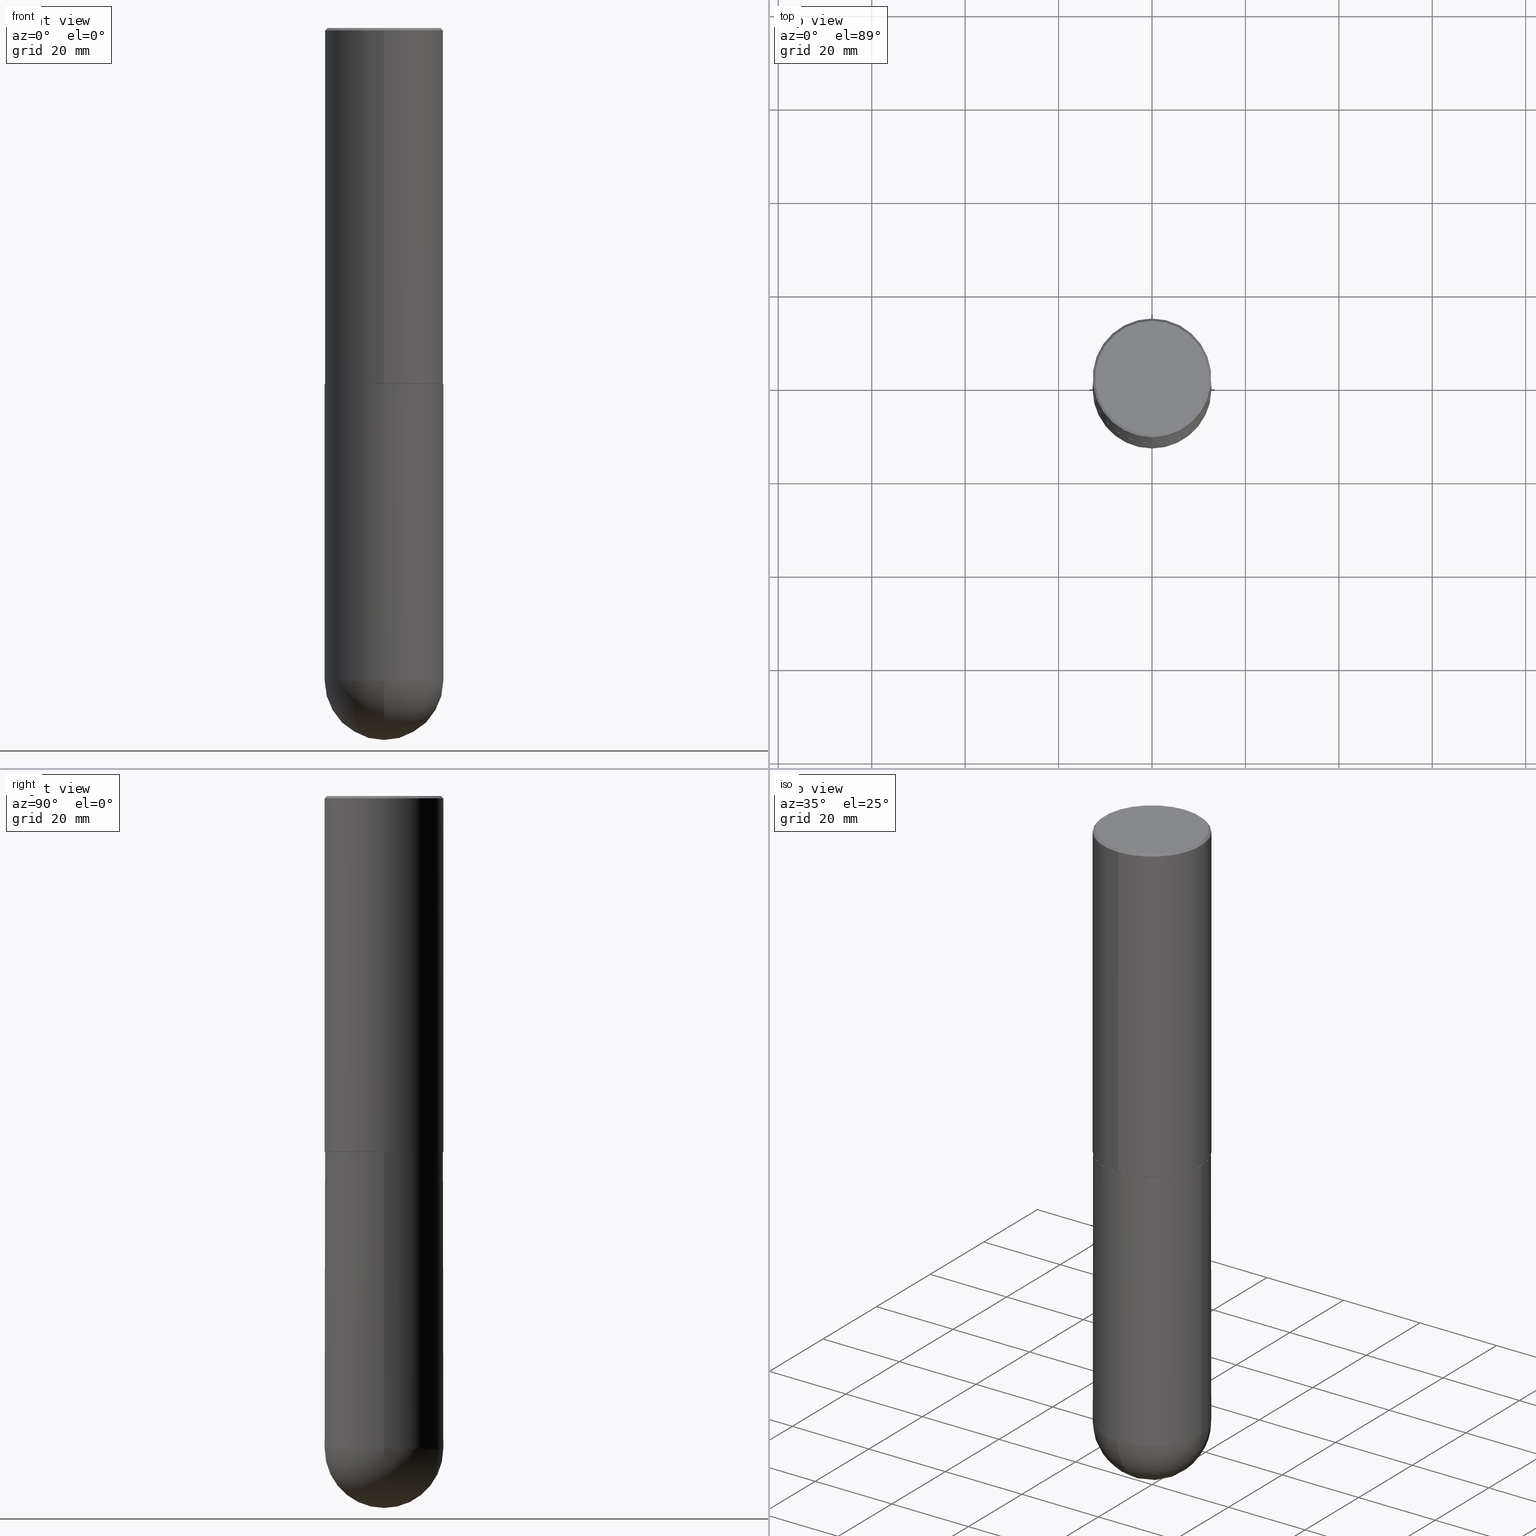
[diagram: canonical four-view strip — front | top / right | iso, engineering-drawing reading convention]
A machine part, canonical four-view strip (front | top / right | iso — engineering-drawing reading convention). The complete STEP part file that produces these views, byte-faithful:
ISO-10303-21;
HEADER;
FILE_DESCRIPTION (( 'STEP AP203' ),
    '1' );
FILE_NAME ('33138.STEP',
    '2024-02-21T17:56:24',
    ( '' ),
    ( '' ),
    'SwSTEP 2.0',
    'SolidWorks 2023',
    '' );
FILE_SCHEMA (( 'CONFIG_CONTROL_DESIGN' ));
ENDSEC;

DATA;
#1 = ORIENTED_EDGE ( 'NONE', *, *, #357, .F. ) ;
#2 = APPROVAL_PERSON_ORGANIZATION ( #5, #290, #143 ) ;
#3 = COORDINATED_UNIVERSAL_TIME_OFFSET ( 5, 0, .BEHIND. ) ;
#4 = DIRECTION ( 'NONE',  ( -1.000000000000000000, 6.982962677686265922E-15, -4.883557194083112901E-29 ) ) ;
#5 = PERSON_AND_ORGANIZATION ( #13, #79 ) ;
#6 =( LENGTH_UNIT ( ) NAMED_UNIT ( * ) SI_UNIT ( $, .METRE. ) );
#7 = CARTESIAN_POINT ( 'NONE',  ( 7.332693263445419070E-29, -1.047276793412986863E-14, -2.999000000000000554 ) ) ;
#8 = EDGE_CURVE ( 'NONE', #223, #323, #102, .T. ) ;
#9 = COORDINATED_UNIVERSAL_TIME_OFFSET ( 5, 0, .BEHIND. ) ;
#10 = CARTESIAN_POINT ( 'NONE',  ( 3.351822085289415042E-15, 0.4800000000000010369, -2.216023152984338399E-15 ) ) ;
#11 = CC_DESIGN_PERSON_AND_ORGANIZATION_ASSIGNMENT ( #344, #258, ( #94 ) ) ;
#12 = DIRECTION ( 'NONE',  ( 2.438088387897960049E-29, -3.491481338843145188E-15, -1.000000000000000000 ) ) ;
#13 = PERSON ( 'UNSPECIFIED', 'UNSPECIFIED', 'UNSPECIFIED', ('UNSPECIFIED'), ('UNSPECIFIED'), ('UNSPECIFIED') ) ;
#14 = DIRECTION ( 'NONE',  ( 2.445046103182866975E-29, -3.492086673601156067E-15, -1.000000000000000000 ) ) ;
#15 =( CONVERSION_BASED_UNIT ( 'INCH', #390 ) LENGTH_UNIT ( ) NAMED_UNIT ( #300 ) );
#16 = EDGE_CURVE ( 'NONE', #52, #340, #304, .T. ) ;
#17 = DIRECTION ( 'NONE',  ( 1.000000000000000000, -6.982962677686266711E-15, 0.000000000000000000 ) ) ;
#18 = AXIS2_PLACEMENT_3D ( 'NONE', #7, #294, #231 ) ;
#19 = DIRECTION ( 'NONE',  ( 6.982962677686265922E-15, 1.000000000000000000, -4.370956789862816416E-15 ) ) ;
#20 = ORIENTED_EDGE ( 'NONE', *, *, #245, .F. ) ;
#21 = CARTESIAN_POINT ( 'NONE',  ( 7.336406418555409790E-29, -1.047444401652943635E-14, -3.000000000000000444 ) ) ;
#22 = PERSON_AND_ORGANIZATION ( #13, #79 ) ;
#23 = CIRCLE ( 'NONE', #356, 0.5000000000000000000 ) ;
#24 = ORIENTED_EDGE ( 'NONE', *, *, #170, .F. ) ;
#25 = AXIS2_PLACEMENT_3D ( 'NONE', #100, #98, #33 ) ;
#26 = ORIENTED_EDGE ( 'NONE', *, *, #357, .T. ) ;
#27 = PRODUCT_DEFINITION ( 'UNKNOWN', '', #94, #158 ) ;
#28 = DIRECTION ( 'NONE',  ( -6.982962677686265922E-15, -1.000000000000000000, 3.491643216902136408E-15 ) ) ;
#29 = ORIENTED_EDGE ( 'NONE', *, *, #188, .T. ) ;
#30 = AXIS2_PLACEMENT_3D ( 'NONE', #303, #325, #47 ) ;
#31 = AXIS2_PLACEMENT_3D ( 'NONE', #69, #402, #106 ) ;
#32 = LINE ( 'NONE', #165, #176 ) ;
#33 = DIRECTION ( 'NONE',  ( -6.982962677686265922E-15, -1.000000000000000000, 3.492086673601156067E-15 ) ) ;
#34 = VERTEX_POINT ( 'NONE', #239 ) ;
#35 = ADVANCED_FACE ( 'NONE', ( #362 ), #88, .T. ) ;
#36 = CARTESIAN_POINT ( 'NONE',  ( 3.491481338843267462E-15, 0.4999999999999808487, -5.500000000000002665 ) ) ;
#37 = ORIENTED_EDGE ( 'NONE', *, *, #386, .T. ) ;
#38 = CARTESIAN_POINT ( 'NONE',  ( -3.430248998885764992E-15, -0.5000000000000001110, -0.01999999999999835937 ) ) ;
#39 = AXIS2_PLACEMENT_3D ( 'NONE', #280, #410, #383 ) ;
#40 = AXIS2_PLACEMENT_3D ( 'NONE', #83, #361, #329 ) ;
#41 = MANIFOLD_SOLID_BREP ( 'Body-Move/Copy2[1]', #93 ) ;
#42 = EDGE_CURVE ( 'NONE', #62, #159, #321, .T. ) ;
#43 = PLANE ( 'NONE',  #377 ) ;
#44 = PRODUCT_DEFINITION_SHAPE ( 'NONE', 'NONE',  #27 ) ;
#45 = SPHERICAL_SURFACE ( 'NONE', #332, 0.5000000000000005551 ) ;
#46 = ORIENTED_EDGE ( 'NONE', *, *, #138, .F. ) ;
#47 = DIRECTION ( 'NONE',  ( -6.982962677686265922E-15, -1.000000000000000000, 3.492086673601155672E-15 ) ) ;
#48 = CARTESIAN_POINT ( 'NONE',  ( -0.5000000000000000000, -1.128608201128287263E-14, -5.500000000000000888 ) ) ;
#49 = VECTOR ( 'NONE', #89, 39.37007874015748854 ) ;
#50 = DIRECTION ( 'NONE',  ( -2.445468806185136597E-29, 3.491481338843145583E-15, 1.000000000000000000 ) ) ;
#51 = EDGE_CURVE ( 'NONE', #65, #159, #201, .T. ) ;
#52 = VERTEX_POINT ( 'NONE', #103 ) ;
#53 = DIRECTION ( 'NONE',  ( 6.982962677686265922E-15, 1.000000000000000000, -3.491643216902136408E-15 ) ) ;
#54 = VERTEX_POINT ( 'NONE', #317 ) ;
#55 = AXIS2_PLACEMENT_3D ( 'NONE', #178, #342, #251 ) ;
#56 =( GEOMETRIC_REPRESENTATION_CONTEXT ( 3 ) GLOBAL_UNCERTAINTY_ASSIGNED_CONTEXT ( ( #215 ) ) GLOBAL_UNIT_ASSIGNED_CONTEXT ( ( #15, #395, #117 ) ) REPRESENTATION_CONTEXT ( 'NONE', 'WORKASPACE' ) );
#57 = PERSON_AND_ORGANIZATION ( #13, #79 ) ;
#58 = ADVANCED_FACE ( 'NONE', ( #224 ), #347, .T. ) ;
#59 = ORIENTED_EDGE ( 'NONE', *, *, #97, .T. ) ;
#60 = DIRECTION ( 'NONE',  ( -6.982962677686265922E-15, -1.000000000000000000, 3.284787166730577015E-15 ) ) ;
#61 = DIRECTION ( 'NONE',  ( -6.982962677686265922E-15, -1.000000000000000000, 3.492086673601155672E-15 ) ) ;
#62 = VERTEX_POINT ( 'NONE', #48 ) ;
#63 = EDGE_LOOP ( 'NONE', ( #202, #155, #408, #243 ) ) ;
#64 = LINE ( 'NONE', #191, #343 ) ;
#65 = VERTEX_POINT ( 'NONE', #296 ) ;
#66 = ORIENTED_EDGE ( 'NONE', *, *, #278, .F. ) ;
#67 = AXIS2_PLACEMENT_3D ( 'NONE', #371, #72, #61 ) ;
#68 = PERSON_AND_ORGANIZATION ( #13, #79 ) ;
#69 = CARTESIAN_POINT ( 'NONE',  ( 2.639777152800000414E-44, -3.770207279351343955E-30, -1.079643099311558880E-15 ) ) ;
#70 = CARTESIAN_POINT ( 'NONE',  ( 0.000000000000000000, 0.000000000000000000, 0.000000000000000000 ) ) ;
#71 = DATE_AND_TIME ( #105, #328 ) ;
#72 = DIRECTION ( 'NONE',  ( -2.445046103182867255E-29, 3.492086673601156067E-15, 1.000000000000000000 ) ) ;
#73 = CARTESIAN_POINT ( 'NONE',  ( 3.491481338843133355E-15, 0.4999999999999999445, -0.02000000000000185310 ) ) ;
#74 = AXIS2_PLACEMENT_3D ( 'NONE', #179, #50, #326 ) ;
#75 = APPROVAL_DATE_TIME ( #351, #141 ) ;
#76 = ADVANCED_FACE ( 'NONE', ( #114 ), #43, .F. ) ;
#77 = ORIENTED_EDGE ( 'NONE', *, *, #189, .F. ) ;
#78 = CARTESIAN_POINT ( 'NONE',  ( 0.5000000000000000000, -1.396592535537257129E-14, -3.000000000000000444 ) ) ;
#79 = ORGANIZATION ( 'UNSPECIFIED', 'UNSPECIFIED', '' ) ;
#80 = CIRCLE ( 'NONE', #31, 0.4800000000000010369 ) ;
#81 = FACE_OUTER_BOUND ( 'NONE', #396, .T. ) ;
#82 = ADVANCED_FACE ( 'NONE', ( #81 ), #190, .T. ) ;
#83 = CARTESIAN_POINT ( 'NONE',  ( 0.000000000000000000, 0.000000000000000000, 0.000000000000000000 ) ) ;
#84 = CIRCLE ( 'NONE', #392, 0.4989999999999999991 ) ;
#85 = ADVANCED_FACE ( 'NONE', ( #238 ), #229, .T. ) ;
#86 = CONICAL_SURFACE ( 'NONE', #183, 0.5000000000000000000, 0.7853981633974468357 ) ;
#87 = VERTEX_POINT ( 'NONE', #211 ) ;
#88 = CYLINDRICAL_SURFACE ( 'NONE', #30, 0.5000000000000002220 ) ;
#89 = DIRECTION ( 'NONE',  ( -4.937700262164715281E-15, -0.7071067811865691111, 0.7071067811865257013 ) ) ;
#90 = CARTESIAN_POINT ( 'NONE',  ( 7.335138309548603447E-29, -1.047626002080347175E-14, -3.000000000000000888 ) ) ;
#91 = LINE ( 'NONE', #187, #49 ) ;
#92 = COORDINATED_UNIVERSAL_TIME_OFFSET ( 5, 0, .BEHIND. ) ;
#93 = CLOSED_SHELL ( 'NONE', ( #58, #116, #331, #210, #107 ) ) ;
#94 = PRODUCT_DEFINITION_FORMATION_WITH_SPECIFIED_SOURCE ( 'ANY', '', #111, .NOT_KNOWN. ) ;
#95 = EDGE_LOOP ( 'NONE', ( #411, #241 ) ) ;
#96 = FACE_OUTER_BOUND ( 'NONE', #220, .T. ) ;
#97 = EDGE_CURVE ( 'NONE', #52, #199, #91, .T. ) ;
#98 = DIRECTION ( 'NONE',  ( -2.445046103182866975E-29, 3.492086673601156067E-15, 1.000000000000000000 ) ) ;
#99 = CARTESIAN_POINT ( 'NONE',  ( 3.545608251442972496E-15, 0.4989999999999895630, -3.000000000000002220 ) ) ;
#100 = CARTESIAN_POINT ( 'NONE',  ( 7.335138309548602326E-29, -1.047626002080347017E-14, -3.000000000000000444 ) ) ;
#101 = ORIENTED_EDGE ( 'NONE', *, *, #170, .T. ) ;
#102 = CIRCLE ( 'NONE', #153, 0.5000000000000000000 ) ;
#103 = CARTESIAN_POINT ( 'NONE',  ( -3.484498376165373188E-15, -0.4990000000000104352, -2.999999999999999112 ) ) ;
#104 = CIRCLE ( 'NONE', #378, 0.5000000000000000000 ) ;
#105 = CALENDAR_DATE ( 2024, 21, 2 ) ;
#106 = DIRECTION ( 'NONE',  ( -6.982962677686265922E-15, -1.000000000000000000, 3.492086673601155672E-15 ) ) ;
#107 = ADVANCED_FACE ( 'NONE', ( #212 ), #400, .T. ) ;
#108 = CARTESIAN_POINT ( 'NONE',  ( 0.000000000000000000, 0.000000000000000000, 0.000000000000000000 ) ) ;
#109 = ORIENTED_EDGE ( 'NONE', *, *, #260, .T. ) ;
#110 = CC_DESIGN_PERSON_AND_ORGANIZATION_ASSIGNMENT ( #22, #345, ( #111 ) ) ;
#111 = PRODUCT ( '33138', '33138', '', ( #271 ) ) ;
#112 = FACE_OUTER_BOUND ( 'NONE', #208, .T. ) ;
#113 = ADVANCED_BREP_SHAPE_REPRESENTATION ( '33138', ( #41, #182, #40 ), #56 ) ;
#114 = FACE_OUTER_BOUND ( 'NONE', #276, .T. ) ;
#115 = DIRECTION ( 'NONE',  ( 1.000000000000000000, -6.982962677686266711E-15, 4.876176775795935793E-29 ) ) ;
#116 = ADVANCED_FACE ( 'NONE', ( #112 ), #45, .T. ) ;
#117 =( NAMED_UNIT ( * ) SI_UNIT ( $, .STERADIAN. ) SOLID_ANGLE_UNIT ( ) );
#118 = ORIENTED_EDGE ( 'NONE', *, *, #235, .F. ) ;
#119 = CC_DESIGN_DATE_AND_TIME_ASSIGNMENT ( #125, #214, ( #27 ) ) ;
#120 = CARTESIAN_POINT ( 'NONE',  ( 4.890092206365760820E-31, -6.984173347202349949E-17, -0.02000000000000010797 ) ) ;
#121 = AXIS2_PLACEMENT_3D ( 'NONE', #128, #249, #272 ) ;
#122 = LOCAL_TIME ( 12, 56, 24.00000000000000000, #3 ) ;
#123 = EDGE_CURVE ( 'NONE', #62, #323, #285, .T. ) ;
#124 = APPROVAL ( #339, 'UNSPECIFIED' ) ;
#125 = DATE_AND_TIME ( #154, #404 ) ;
#126 = DIRECTION ( 'NONE',  ( -2.445468806185136597E-29, 3.491481338843145583E-15, 1.000000000000000000 ) ) ;
#127 = ORIENTED_EDGE ( 'NONE', *, *, #375, .T. ) ;
#128 = CARTESIAN_POINT ( 'NONE',  ( 4.890092206365760820E-31, -6.984173347202349949E-17, -0.02000000000000010797 ) ) ;
#129 = ORIENTED_EDGE ( 'NONE', *, *, #355, .F. ) ;
#130 = ORIENTED_EDGE ( 'NONE', *, *, #16, .F. ) ;
#131 = FACE_OUTER_BOUND ( 'NONE', #302, .T. ) ;
#132 = CARTESIAN_POINT ( 'NONE',  ( 7.336406418555409790E-29, -1.047444401652943635E-14, -3.000000000000000444 ) ) ;
#133 = AXIS2_PLACEMENT_3D ( 'NONE', #146, #156, #387 ) ;
#134 = ORIENTED_EDGE ( 'NONE', *, *, #401, .F. ) ;
#135 = AXIS2_PLACEMENT_3D ( 'NONE', #225, #308, #28 ) ;
#136 = DIRECTION ( 'NONE',  ( 6.982962677686265922E-15, 1.000000000000000000, -4.370956789862816416E-15 ) ) ;
#137 = VERTEX_POINT ( 'NONE', #305 ) ;
#138 = EDGE_CURVE ( 'NONE', #159, #54, #23, .T. ) ;
#139 = LOCAL_TIME ( 12, 56, 24.00000000000000000, #363 ) ;
#140 = DIRECTION ( 'NONE',  ( 1.000000000000000000, -6.982962677686266711E-15, 4.876176775795935793E-29 ) ) ;
#141 = APPROVAL ( #157, 'UNSPECIFIED' ) ;
#142 = FACE_OUTER_BOUND ( 'NONE', #95, .T. ) ;
#143 = APPROVAL_ROLE ( '' ) ;
#144 = DIRECTION ( 'NONE',  ( 6.982962677686265922E-15, 1.000000000000000000, -3.492086673601156067E-15 ) ) ;
#145 = APPROVAL_STATUS ( 'not_yet_approved' ) ;
#146 = CARTESIAN_POINT ( 'NONE',  ( 1.311895865610436840E-28, -1.967732973177735475E-14, -5.500000000000000888 ) ) ;
#147 = CIRCLE ( 'NONE', #133, 0.5000000000000005551 ) ;
#148 = SECURITY_CLASSIFICATION ( '', '', #195 ) ;
#149 = DIRECTION ( 'NONE',  ( 2.445046103182867255E-29, -3.492086673601156067E-15, -1.000000000000000000 ) ) ;
#150 = EDGE_CURVE ( 'NONE', #340, #52, #84, .T. ) ;
#151 = CARTESIAN_POINT ( 'NONE',  ( 7.335138309548603447E-29, -1.047626002080347175E-14, -3.000000000000000888 ) ) ;
#152 = EDGE_CURVE ( 'NONE', #54, #314, #327, .T. ) ;
#153 = AXIS2_PLACEMENT_3D ( 'NONE', #21, #297, #17 ) ;
#154 = CALENDAR_DATE ( 2024, 21, 2 ) ;
#155 = ORIENTED_EDGE ( 'NONE', *, *, #355, .T. ) ;
#156 = DIRECTION ( 'NONE',  ( 1.000000000000000000, -6.982962677686265922E-15, 4.883557194083112340E-29 ) ) ;
#157 = APPROVAL_STATUS ( 'not_yet_approved' ) ;
#158 = DESIGN_CONTEXT ( 'detailed design', #412, 'design' ) ;
#159 = VERTEX_POINT ( 'NONE', #277 ) ;
#160 = ADVANCED_FACE ( 'NONE', ( #407 ), #372, .F. ) ;
#161 = DIRECTION ( 'NONE',  ( -2.445468806185136597E-29, 3.491481338843145583E-15, 1.000000000000000000 ) ) ;
#162 = DIRECTION ( 'NONE',  ( 1.000000000000000000, -6.982962677686270655E-15, 0.000000000000000000 ) ) ;
#163 = ADVANCED_FACE ( 'NONE', ( #166 ), #205, .T. ) ;
#164 = PRODUCT_RELATED_PRODUCT_CATEGORY ( 'detail', '', ( #111 ) ) ;
#165 = CARTESIAN_POINT ( 'NONE',  ( 3.552713678800501718E-15, 0.5000000000000002220, -1.746043336800578625E-15 ) ) ;
#166 = FACE_OUTER_BOUND ( 'NONE', #173, .T. ) ;
#167 = APPROVAL_ROLE ( '' ) ;
#168 = CARTESIAN_POINT ( 'NONE',  ( 3.549160965121774973E-15, 0.4989999999999895630, -3.000000000000002220 ) ) ;
#169 = APPROVAL_ROLE ( '' ) ;
#170 = EDGE_CURVE ( 'NONE', #65, #314, #147, .T. ) ;
#171 = LINE ( 'NONE', #99, #185 ) ;
#172 = LINE ( 'NONE', #289, #253 ) ;
#173 = EDGE_LOOP ( 'NONE', ( #129, #244, #59, #230 ) ) ;
#174 = CARTESIAN_POINT ( 'NONE',  ( 3.552713678800539584E-15, 0.4999999999999900080, -2.999000000000001886 ) ) ;
#175 = PLANE ( 'NONE',  #247 ) ;
#176 = VECTOR ( 'NONE', #379, 39.37007874015748143 ) ;
#177 = CC_DESIGN_PERSON_AND_ORGANIZATION_ASSIGNMENT ( #315, #291, ( #148 ) ) ;
#178 = CARTESIAN_POINT ( 'NONE',  ( 1.311895865610436840E-28, -1.967732973177735475E-14, -5.500000000000000888 ) ) ;
#179 = CARTESIAN_POINT ( 'NONE',  ( 1.345007843401825128E-28, -1.920314736363730603E-14, -5.500000000000000888 ) ) ;
#180 = CARTESIAN_POINT ( 'NONE',  ( 0.000000000000000000, 0.000000000000000000, 0.000000000000000000 ) ) ;
#181 = ORIENTED_EDGE ( 'NONE', *, *, #189, .T. ) ;
#182 = MANIFOLD_SOLID_BREP ( 'Body-Move/Copy2[2]', #298 ) ;
#183 = AXIS2_PLACEMENT_3D ( 'NONE', #319, #279, #316 ) ;
#184 = ORIENTED_EDGE ( 'NONE', *, *, #394, .F. ) ;
#185 = VECTOR ( 'NONE', #346, 39.37007874015748854 ) ;
#186 = DIRECTION ( 'NONE',  ( -1.000000000000000000, 6.982962677686265922E-15, -4.883557194083112901E-29 ) ) ;
#187 = CARTESIAN_POINT ( 'NONE',  ( -3.484498376165373188E-15, -0.4990000000000104352, -2.999999999999999112 ) ) ;
#188 = EDGE_CURVE ( 'NONE', #406, #199, #369, .T. ) ;
#189 = EDGE_CURVE ( 'NONE', #54, #223, #172, .T. ) ;
#190 = CONICAL_SURFACE ( 'NONE', #262, 0.5000000000000000000, 0.7853981633974468357 ) ;
#191 = CARTESIAN_POINT ( 'NONE',  ( -3.491481338843134539E-15, -0.5000000000000002220, 1.746043336800578625E-15 ) ) ;
#192 = ORIENTED_EDGE ( 'NONE', *, *, #42, .T. ) ;
#193 = LOCAL_TIME ( 12, 56, 24.00000000000000000, #384 ) ;
#194 = ORIENTED_EDGE ( 'NONE', *, *, #375, .F. ) ;
#195 = SECURITY_CLASSIFICATION_LEVEL ( 'unclassified' ) ;
#196 = CC_DESIGN_DATE_AND_TIME_ASSIGNMENT ( #71, #318, ( #148 ) ) ;
#197 = CYLINDRICAL_SURFACE ( 'NONE', #254, 0.5000000000000002220 ) ;
#198 = DIRECTION ( 'NONE',  ( -2.445468806185136877E-29, 3.491481338843145188E-15, 1.000000000000000000 ) ) ;
#199 = VERTEX_POINT ( 'NONE', #352 ) ;
#200 = DIRECTION ( 'NONE',  ( 4.937700262164540154E-15, 0.7071067811865440200, -0.7071067811865510144 ) ) ;
#201 = CIRCLE ( 'NONE', #55, 0.5000000000000005551 ) ;
#202 = ORIENTED_EDGE ( 'NONE', *, *, #16, .T. ) ;
#203 = CC_DESIGN_PERSON_AND_ORGANIZATION_ASSIGNMENT ( #388, #367, ( #27 ) ) ;
#204 = ORIENTED_EDGE ( 'NONE', *, *, #123, .T. ) ;
#205 = CONICAL_SURFACE ( 'NONE', #39, 0.4989999999999999991, 0.7853981633974824739 ) ;
#206 = VECTOR ( 'NONE', #391, 39.37007874015748143 ) ;
#207 = CC_DESIGN_APPROVAL ( #290, ( #27 ) ) ;
#208 = EDGE_LOOP ( 'NONE', ( #24, #232, #349, #184 ) ) ;
#209 = CIRCLE ( 'NONE', #67, 0.4800000000000010369 ) ;
#210 = ADVANCED_FACE ( 'NONE', ( #142 ), #175, .F. ) ;
#211 = CARTESIAN_POINT ( 'NONE',  ( 3.491481338843133355E-15, 0.4999999999999999445, -0.02000000000000185310 ) ) ;
#212 = FACE_OUTER_BOUND ( 'NONE', #358, .T. ) ;
#213 = AXIS2_PLACEMENT_3D ( 'NONE', #273, #337, #162 ) ;
#214 = DATE_TIME_ROLE ( 'creation_date' ) ;
#215 = UNCERTAINTY_MEASURE_WITH_UNIT (LENGTH_MEASURE( 1.000000000000000082E-05 ), #15, 'distance_accuracy_value', 'NONE');
#216 = VECTOR ( 'NONE', #288, 39.37007874015748143 ) ;
#217 = EDGE_LOOP ( 'NONE', ( #130, #335 ) ) ;
#218 = DIRECTION ( 'NONE',  ( -2.445468806185136597E-29, 3.491481338843145583E-15, 1.000000000000000000 ) ) ;
#219 = DIRECTION ( 'NONE',  ( 1.000000000000000000, -6.982962677686266711E-15, 0.000000000000000000 ) ) ;
#220 = EDGE_LOOP ( 'NONE', ( #309, #29, #330, #194 ) ) ;
#221 = AXIS2_PLACEMENT_3D ( 'NONE', #360, #398, #365 ) ;
#222 = FACE_OUTER_BOUND ( 'NONE', #246, .T. ) ;
#223 = VERTEX_POINT ( 'NONE', #78 ) ;
#224 = FACE_OUTER_BOUND ( 'NONE', #281, .T. ) ;
#225 = CARTESIAN_POINT ( 'NONE',  ( 4.890092206365760820E-31, -6.984173347202349949E-17, -0.02000000000000010797 ) ) ;
#226 = CARTESIAN_POINT ( 'NONE',  ( 1.345007843401825128E-28, -1.920314736363730603E-14, -5.500000000000000888 ) ) ;
#227 = DIRECTION ( 'NONE',  ( -6.982962677686265133E-15, -1.000000000000000000, 3.278217592397113101E-15 ) ) ;
#228 = CARTESIAN_POINT ( 'NONE',  ( 1.311895865610436840E-28, -1.967732973177735475E-14, -5.500000000000000888 ) ) ;
#229 = CONICAL_SURFACE ( 'NONE', #221, 0.4989999999999999991, 0.7853981633974824739 ) ;
#230 = ORIENTED_EDGE ( 'NONE', *, *, #188, .F. ) ;
#231 = DIRECTION ( 'NONE',  ( -6.982962677686265133E-15, -1.000000000000000000, 3.278217592397113101E-15 ) ) ;
#232 = ORIENTED_EDGE ( 'NONE', *, *, #51, .T. ) ;
#233 = ORIENTED_EDGE ( 'NONE', *, *, #152, .F. ) ;
#234 = AXIS2_PLACEMENT_3D ( 'NONE', #151, #269, #267 ) ;
#235 = EDGE_CURVE ( 'NONE', #323, #223, #237, .T. ) ;
#236 = CC_DESIGN_SECURITY_CLASSIFICATION ( #148, ( #94 ) ) ;
#237 = CIRCLE ( 'NONE', #403, 0.5000000000000000000 ) ;
#238 = FACE_OUTER_BOUND ( 'NONE', #63, .T. ) ;
#239 = CARTESIAN_POINT ( 'NONE',  ( 3.421651712066274001E-15, 0.4800000000000010369, -2.755844702640117248E-15 ) ) ;
#240 = CC_DESIGN_PERSON_AND_ORGANIZATION_ASSIGNMENT ( #68, #252, ( #94 ) ) ;
#241 = ORIENTED_EDGE ( 'NONE', *, *, #235, .T. ) ;
#242 = CALENDAR_DATE ( 2024, 21, 2 ) ;
#243 = ORIENTED_EDGE ( 'NONE', *, *, #97, .F. ) ;
#244 = ORIENTED_EDGE ( 'NONE', *, *, #150, .T. ) ;
#245 = EDGE_CURVE ( 'NONE', #137, #34, #209, .T. ) ;
#246 = EDGE_LOOP ( 'NONE', ( #373, #1, #311, #127 ) ) ;
#247 = AXIS2_PLACEMENT_3D ( 'NONE', #264, #12, #354 ) ;
#248 = ORIENTED_EDGE ( 'NONE', *, *, #138, .T. ) ;
#249 = DIRECTION ( 'NONE',  ( -2.445046103182867255E-29, 3.492086673601156067E-15, 1.000000000000000000 ) ) ;
#250 = CARTESIAN_POINT ( 'NONE',  ( 1.311895865610436840E-28, -1.967732973177735475E-14, -5.500000000000000888 ) ) ;
#251 = DIRECTION ( 'NONE',  ( -7.105427357601000281E-15, -1.000000000000000000, 0.000000000000000000 ) ) ;
#252 = PERSON_AND_ORGANIZATION_ROLE ( 'design_supplier' ) ;
#253 = VECTOR ( 'NONE', #198, 39.37007874015748143 ) ;
#254 = AXIS2_PLACEMENT_3D ( 'NONE', #108, #283, #255 ) ;
#255 = DIRECTION ( 'NONE',  ( -6.982962677686265922E-15, -1.000000000000000000, 3.492086673601155672E-15 ) ) ;
#256 = ORIENTED_EDGE ( 'NONE', *, *, #394, .T. ) ;
#257 = ORIENTED_EDGE ( 'NONE', *, *, #260, .F. ) ;
#258 = PERSON_AND_ORGANIZATION_ROLE ( 'creator' ) ;
#259 = CARTESIAN_POINT ( 'NONE',  ( 1.345007843401825128E-28, -1.920314736363730603E-14, -5.500000000000000888 ) ) ;
#260 = EDGE_CURVE ( 'NONE', #261, #87, #292, .T. ) ;
#261 = VERTEX_POINT ( 'NONE', #341 ) ;
#262 = AXIS2_PLACEMENT_3D ( 'NONE', #120, #149, #53 ) ;
#263 = CC_DESIGN_APPROVAL ( #141, ( #94 ) ) ;
#264 = CARTESIAN_POINT ( 'NONE',  ( 3.491481338843206325E-15, 0.4999999999999895639, -3.000000000000001332 ) ) ;
#265 = ORIENTED_EDGE ( 'NONE', *, *, #123, .F. ) ;
#266 = ORIENTED_EDGE ( 'NONE', *, *, #152, .T. ) ;
#267 = DIRECTION ( 'NONE',  ( -6.982962677686265922E-15, -1.000000000000000000, 3.284787166730577015E-15 ) ) ;
#268 = AXIS2_PLACEMENT_3D ( 'NONE', #405, #382, #227 ) ;
#269 = DIRECTION ( 'NONE',  ( -2.445046103182867255E-29, 3.492086673601156067E-15, 1.000000000000000000 ) ) ;
#270 = APPROVAL_DATE_TIME ( #301, #124 ) ;
#271 = MECHANICAL_CONTEXT ( 'NONE', #389, 'mechanical' ) ;
#272 = DIRECTION ( 'NONE',  ( -6.982962677686265922E-15, -1.000000000000000000, 3.491643216902136408E-15 ) ) ;
#273 = CARTESIAN_POINT ( 'NONE',  ( 1.345007843401825128E-28, -1.920314736363730603E-14, -5.500000000000000888 ) ) ;
#274 = CIRCLE ( 'NONE', #268, 0.5000000000000004441 ) ;
#275 = DIRECTION ( 'NONE',  ( 1.000000000000000000, -6.982962677686270655E-15, 0.000000000000000000 ) ) ;
#276 = EDGE_LOOP ( 'NONE', ( #26, #338 ) ) ;
#277 = CARTESIAN_POINT ( 'NONE',  ( -3.552713678800369978E-15, -0.5000000000000196509, -5.499999999999999112 ) ) ;
#278 = EDGE_CURVE ( 'NONE', #199, #261, #64, .T. ) ;
#279 = DIRECTION ( 'NONE',  ( 2.445046103182867255E-29, -3.492086673601156067E-15, -1.000000000000000000 ) ) ;
#280 = CARTESIAN_POINT ( 'NONE',  ( 7.335138309548603447E-29, -1.047626002080347175E-14, -3.000000000000000888 ) ) ;
#281 = EDGE_LOOP ( 'NONE', ( #256, #204, #336, #77, #266 ) ) ;
#282 = EDGE_CURVE ( 'NONE', #406, #87, #32, .T. ) ;
#283 = DIRECTION ( 'NONE',  ( -2.445046103182867255E-29, 3.492086673601156067E-15, 1.000000000000000000 ) ) ;
#284 = EDGE_LOOP ( 'NONE', ( #376, #380, #257, #66 ) ) ;
#285 = LINE ( 'NONE', #353, #206 ) ;
#286 = CALENDAR_DATE ( 2024, 21, 2 ) ;
#287 = AXIS2_PLACEMENT_3D ( 'NONE', #70, #366, #115 ) ;
#288 = DIRECTION ( 'NONE',  ( -4.851104656540956386E-15, -0.7071067811865489050, -0.7071067811865461294 ) ) ;
#289 = CARTESIAN_POINT ( 'NONE',  ( 0.5000000000000000000, -3.491481338843133355E-15, 2.438088387897967896E-29 ) ) ;
#290 = APPROVAL ( #145, 'UNSPECIFIED' ) ;
#291 = PERSON_AND_ORGANIZATION_ROLE ( 'classification_officer' ) ;
#292 = CIRCLE ( 'NONE', #121, 0.5000000000000000000 ) ;
#293 = DIRECTION ( 'NONE',  ( -2.445468806185136597E-29, 3.491481338843145583E-15, 1.000000000000000000 ) ) ;
#294 = DIRECTION ( 'NONE',  ( -2.445046103182867255E-29, 3.492086673601156067E-15, 1.000000000000000000 ) ) ;
#295 = SHAPE_DEFINITION_REPRESENTATION ( #44, #113 ) ;
#296 = CARTESIAN_POINT ( 'NONE',  ( 1.436307221642642309E-28, -2.139245423122024710E-14, -6.000000000000001776 ) ) ;
#297 = DIRECTION ( 'NONE',  ( -2.445468806185136597E-29, 3.491481338843145583E-15, 1.000000000000000000 ) ) ;
#298 = CLOSED_SHELL ( 'NONE', ( #85, #35, #82, #310, #364, #163, #160, #76 ) ) ;
#299 = APPROVAL_DATE_TIME ( #334, #290 ) ;
#300 = DIMENSIONAL_EXPONENTS ( 1.000000000000000000, 0.000000000000000000, 0.000000000000000000, 0.000000000000000000, 0.000000000000000000, 0.000000000000000000, 0.000000000000000000 ) ;
#301 = DATE_AND_TIME ( #286, #122 ) ;
#302 = EDGE_LOOP ( 'NONE', ( #399, #101, #233, #46 ) ) ;
#303 = CARTESIAN_POINT ( 'NONE',  ( 0.000000000000000000, 0.000000000000000000, 0.000000000000000000 ) ) ;
#304 = CIRCLE ( 'NONE', #234, 0.4989999999999999991 ) ;
#305 = CARTESIAN_POINT ( 'NONE',  ( -3.361644018908053211E-15, -0.4800000000000010369, 5.965585040169995854E-16 ) ) ;
#306 = APPLICATION_PROTOCOL_DEFINITION ( 'international standard', 'config_control_design', 1994, #389 ) ;
#307 = DIRECTION ( 'NONE',  ( 1.000000000000000000, -6.982962677686270655E-15, 0.000000000000000000 ) ) ;
#308 = DIRECTION ( 'NONE',  ( -2.445046103182867255E-29, 3.492086673601156067E-15, 1.000000000000000000 ) ) ;
#309 = ORIENTED_EDGE ( 'NONE', *, *, #282, .F. ) ;
#310 = ADVANCED_FACE ( 'NONE', ( #222 ), #86, .T. ) ;
#311 = ORIENTED_EDGE ( 'NONE', *, *, #401, .T. ) ;
#312 = AXIS2_PLACEMENT_3D ( 'NONE', #180, #293, #140 ) ;
#313 = DIRECTION ( 'NONE',  ( -2.445046103182867535E-29, 3.492086673601156067E-15, 1.000000000000000000 ) ) ;
#314 = VERTEX_POINT ( 'NONE', #36 ) ;
#315 = PERSON_AND_ORGANIZATION ( #13, #79 ) ;
#316 = DIRECTION ( 'NONE',  ( 6.982962677686265922E-15, 1.000000000000000000, -3.491643216902136408E-15 ) ) ;
#317 = CARTESIAN_POINT ( 'NONE',  ( 0.5000000000000000000, -1.833027702892651007E-14, -5.500000000000000888 ) ) ;
#318 = DATE_TIME_ROLE ( 'classification_date' ) ;
#319 = CARTESIAN_POINT ( 'NONE',  ( 4.890092206365760820E-31, -6.984173347202349949E-17, -0.02000000000000010797 ) ) ;
#320 = APPLICATION_PROTOCOL_DEFINITION ( 'international standard', 'config_control_design', 1994, #412 ) ;
#321 = CIRCLE ( 'NONE', #74, 0.5000000000000000000 ) ;
#322 = APPROVAL_PERSON_ORGANIZATION ( #385, #124, #169 ) ;
#323 = VERTEX_POINT ( 'NONE', #409 ) ;
#324 = CIRCLE ( 'NONE', #135, 0.5000000000000000000 ) ;
#325 = DIRECTION ( 'NONE',  ( -2.445046103182867255E-29, 3.492086673601156067E-15, 1.000000000000000000 ) ) ;
#326 = DIRECTION ( 'NONE',  ( 1.000000000000000000, -6.982962677686270655E-15, 0.000000000000000000 ) ) ;
#327 = CIRCLE ( 'NONE', #213, 0.5000000000000000000 ) ;
#328 = LOCAL_TIME ( 12, 56, 24.00000000000000000, #9 ) ;
#329 = DIRECTION ( 'NONE',  ( 1.000000000000000000, 0.000000000000000000, 0.000000000000000000 ) ) ;
#330 = ORIENTED_EDGE ( 'NONE', *, *, #278, .T. ) ;
#331 = ADVANCED_FACE ( 'NONE', ( #131 ), #374, .T. ) ;
#332 = AXIS2_PLACEMENT_3D ( 'NONE', #228, #186, #19 ) ;
#333 = CC_DESIGN_APPROVAL ( #124, ( #148 ) ) ;
#334 = DATE_AND_TIME ( #242, #139 ) ;
#335 = ORIENTED_EDGE ( 'NONE', *, *, #150, .F. ) ;
#336 = ORIENTED_EDGE ( 'NONE', *, *, #8, .F. ) ;
#337 = DIRECTION ( 'NONE',  ( -2.445468806185136597E-29, 3.491481338843145583E-15, 1.000000000000000000 ) ) ;
#338 = ORIENTED_EDGE ( 'NONE', *, *, #245, .T. ) ;
#339 = APPROVAL_STATUS ( 'not_yet_approved' ) ;
#340 = VERTEX_POINT ( 'NONE', #168 ) ;
#341 = CARTESIAN_POINT ( 'NONE',  ( -3.430248998885764992E-15, -0.5000000000000001110, -0.01999999999999835937 ) ) ;
#342 = DIRECTION ( 'NONE',  ( -1.000000000000000000, 7.105427357601001070E-15, -4.926315508542082329E-29 ) ) ;
#343 = VECTOR ( 'NONE', #313, 39.37007874015748143 ) ;
#344 = PERSON_AND_ORGANIZATION ( #13, #79 ) ;
#345 = PERSON_AND_ORGANIZATION_ROLE ( 'design_owner' ) ;
#346 = DIRECTION ( 'NONE',  ( 5.024295867788231995E-15, 0.7071067811865739960, 0.7071067811865208164 ) ) ;
#347 = CYLINDRICAL_SURFACE ( 'NONE', #312, 0.5000000000000000000 ) ;
#348 = LINE ( 'NONE', #38, #216 ) ;
#349 = ORIENTED_EDGE ( 'NONE', *, *, #42, .F. ) ;
#350 = LINE ( 'NONE', #73, #370 ) ;
#351 = DATE_AND_TIME ( #381, #193 ) ;
#352 = CARTESIAN_POINT ( 'NONE',  ( -3.491481338843062752E-15, -0.5000000000000108802, -2.998999999999998778 ) ) ;
#353 = CARTESIAN_POINT ( 'NONE',  ( -0.5000000000000000000, 3.552713678800500929E-15, -2.459467545127452891E-29 ) ) ;
#354 = DIRECTION ( 'NONE',  ( -1.000000000000000000, 6.982962677686265922E-15, -4.876176775795935793E-29 ) ) ;
#355 = EDGE_CURVE ( 'NONE', #340, #406, #171, .T. ) ;
#356 = AXIS2_PLACEMENT_3D ( 'NONE', #226, #218, #307 ) ;
#357 = EDGE_CURVE ( 'NONE', #34, #137, #80, .T. ) ;
#358 = EDGE_LOOP ( 'NONE', ( #265, #192, #248, #181, #118 ) ) ;
#359 = APPROVAL_PERSON_ORGANIZATION ( #57, #141, #167 ) ;
#360 = CARTESIAN_POINT ( 'NONE',  ( 7.335138309548603447E-29, -1.047626002080347175E-14, -3.000000000000000888 ) ) ;
#361 = DIRECTION ( 'NONE',  ( 0.000000000000000000, 0.000000000000000000, 1.000000000000000000 ) ) ;
#362 = FACE_OUTER_BOUND ( 'NONE', #284, .T. ) ;
#363 = COORDINATED_UNIVERSAL_TIME_OFFSET ( 5, 0, .BEHIND. ) ;
#364 = ADVANCED_FACE ( 'NONE', ( #96 ), #197, .T. ) ;
#365 = DIRECTION ( 'NONE',  ( -6.982962677686265922E-15, -1.000000000000000000, 3.284787166730577015E-15 ) ) ;
#366 = DIRECTION ( 'NONE',  ( -2.445468806185136597E-29, 3.491481338843145583E-15, 1.000000000000000000 ) ) ;
#367 = PERSON_AND_ORGANIZATION_ROLE ( 'creator' ) ;
#368 = DIRECTION ( 'NONE',  ( -2.445046103182867255E-29, 3.492086673601156067E-15, 1.000000000000000000 ) ) ;
#369 = CIRCLE ( 'NONE', #18, 0.5000000000000004441 ) ;
#370 = VECTOR ( 'NONE', #200, 39.37007874015748143 ) ;
#371 = CARTESIAN_POINT ( 'NONE',  ( 2.639777152800000414E-44, -3.770207279351343955E-30, -1.079643099311558880E-15 ) ) ;
#372 = PLANE ( 'NONE',  #25 ) ;
#373 = ORIENTED_EDGE ( 'NONE', *, *, #386, .F. ) ;
#374 = SPHERICAL_SURFACE ( 'NONE', #393, 0.5000000000000005551 ) ;
#375 = EDGE_CURVE ( 'NONE', #87, #261, #324, .T. ) ;
#376 = ORIENTED_EDGE ( 'NONE', *, *, #397, .T. ) ;
#377 = AXIS2_PLACEMENT_3D ( 'NONE', #10, #14, #144 ) ;
#378 = AXIS2_PLACEMENT_3D ( 'NONE', #259, #161, #275 ) ;
#379 = DIRECTION ( 'NONE',  ( -2.445046103182867535E-29, 3.492086673601156067E-15, 1.000000000000000000 ) ) ;
#380 = ORIENTED_EDGE ( 'NONE', *, *, #282, .T. ) ;
#381 = CALENDAR_DATE ( 2024, 21, 2 ) ;
#382 = DIRECTION ( 'NONE',  ( -2.445046103182867255E-29, 3.492086673601156067E-15, 1.000000000000000000 ) ) ;
#383 = DIRECTION ( 'NONE',  ( -6.982962677686265922E-15, -1.000000000000000000, 3.284787166730577015E-15 ) ) ;
#384 = COORDINATED_UNIVERSAL_TIME_OFFSET ( 5, 0, .BEHIND. ) ;
#385 = PERSON_AND_ORGANIZATION ( #13, #79 ) ;
#386 = EDGE_CURVE ( 'NONE', #137, #261, #348, .T. ) ;
#387 = DIRECTION ( 'NONE',  ( 6.982962677686265922E-15, 1.000000000000000000, 0.000000000000000000 ) ) ;
#388 = PERSON_AND_ORGANIZATION ( #13, #79 ) ;
#389 = APPLICATION_CONTEXT ( 'configuration controlled 3d designs of mechanical parts and assemblies' ) ;
#390 = LENGTH_MEASURE_WITH_UNIT ( LENGTH_MEASURE( 0.02539999999999999897 ), #6 );
#391 = DIRECTION ( 'NONE',  ( -2.445468806185136877E-29, 3.491481338843145188E-15, 1.000000000000000000 ) ) ;
#392 = AXIS2_PLACEMENT_3D ( 'NONE', #90, #368, #60 ) ;
#393 = AXIS2_PLACEMENT_3D ( 'NONE', #250, #4, #136 ) ;
#394 = EDGE_CURVE ( 'NONE', #314, #62, #104, .T. ) ;
#395 =( NAMED_UNIT ( * ) PLANE_ANGLE_UNIT ( ) SI_UNIT ( $, .RADIAN. ) );
#396 = EDGE_LOOP ( 'NONE', ( #20, #37, #109, #134 ) ) ;
#397 = EDGE_CURVE ( 'NONE', #199, #406, #274, .T. ) ;
#398 = DIRECTION ( 'NONE',  ( -2.445046103182867255E-29, 3.492086673601156067E-15, 1.000000000000000000 ) ) ;
#399 = ORIENTED_EDGE ( 'NONE', *, *, #51, .F. ) ;
#400 = CYLINDRICAL_SURFACE ( 'NONE', #287, 0.5000000000000000000 ) ;
#401 = EDGE_CURVE ( 'NONE', #34, #87, #350, .T. ) ;
#402 = DIRECTION ( 'NONE',  ( -2.445046103182867255E-29, 3.492086673601156067E-15, 1.000000000000000000 ) ) ;
#403 = AXIS2_PLACEMENT_3D ( 'NONE', #132, #126, #219 ) ;
#404 = LOCAL_TIME ( 12, 56, 24.00000000000000000, #92 ) ;
#405 = CARTESIAN_POINT ( 'NONE',  ( 7.332693263445419070E-29, -1.047276793412986863E-14, -2.999000000000000554 ) ) ;
#406 = VERTEX_POINT ( 'NONE', #174 ) ;
#407 = FACE_OUTER_BOUND ( 'NONE', #217, .T. ) ;
#408 = ORIENTED_EDGE ( 'NONE', *, *, #397, .F. ) ;
#409 = CARTESIAN_POINT ( 'NONE',  ( -0.5000000000000000000, -1.128608201128286947E-14, -3.000000000000000444 ) ) ;
#410 = DIRECTION ( 'NONE',  ( -2.445046103182867255E-29, 3.492086673601156067E-15, 1.000000000000000000 ) ) ;
#411 = ORIENTED_EDGE ( 'NONE', *, *, #8, .T. ) ;
#412 = APPLICATION_CONTEXT ( 'configuration controlled 3d designs of mechanical parts and assemblies' ) ;
ENDSEC;
END-ISO-10303-21;
